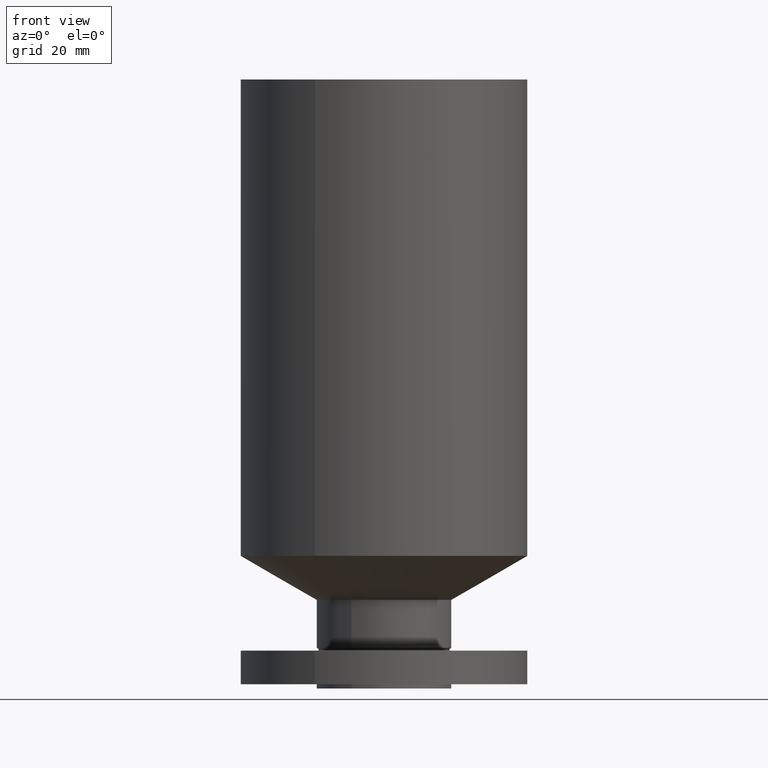
[diagram: clean part render]
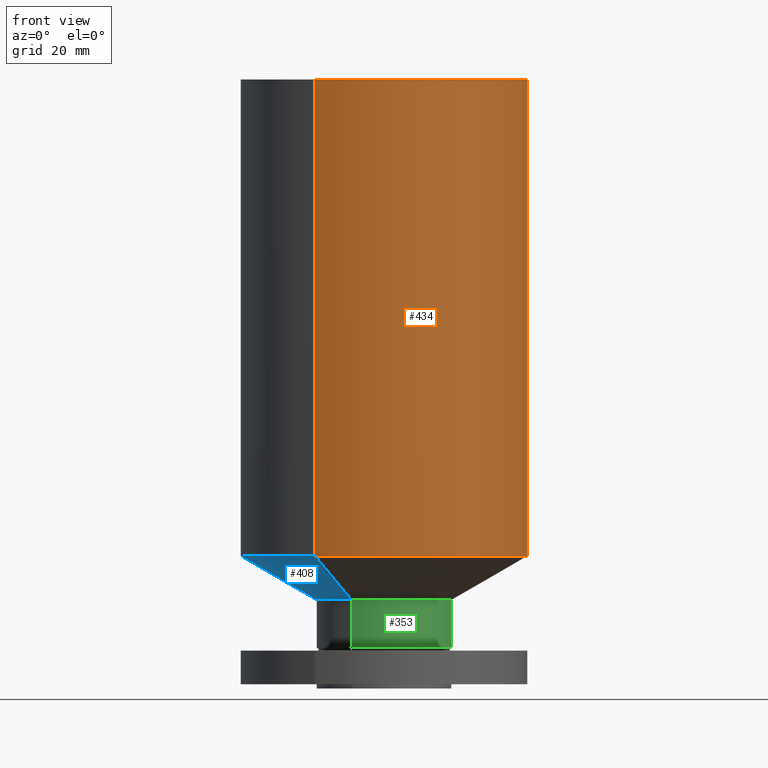
[diagram: same view with three faces highlighted in distinct colors, each labeled with its STEP entity id]
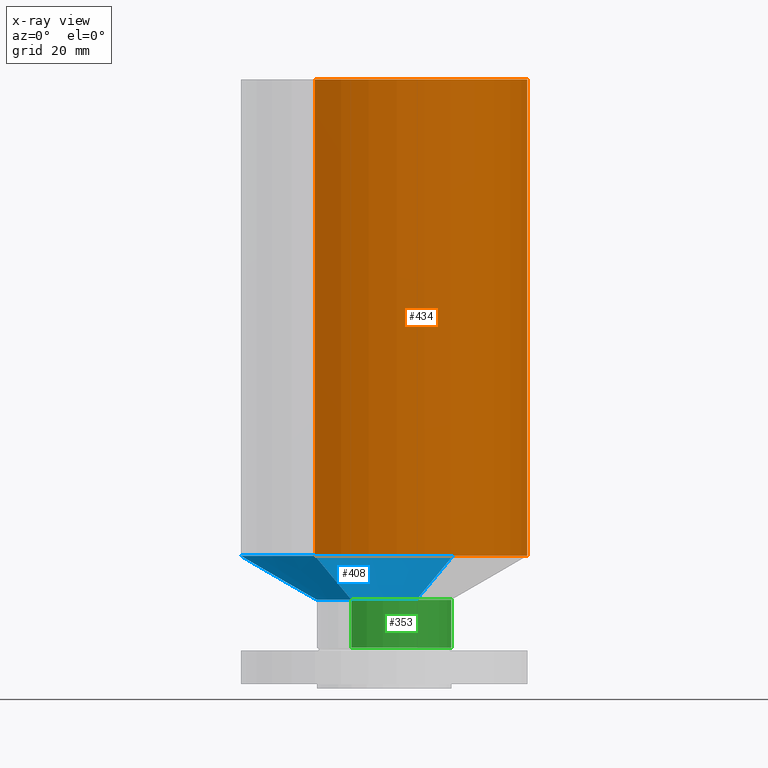
[diagram: x-ray of the same camera — body ghosted, the three highlighted faces saturated]
A machine part, front view with three faces highlighted in distinct colors.
The next image is the same camera in x-ray (body ghosted, the three faces saturated) — at least one of them is partly hidden behind the body in this view.
Their STEP definitions:

[orange] entity #434 — the highlighted cylindrical surface (partial cylindrical patch) has radius 53.975 mm, axis along (0, 0, -1).
#183=AXIS2_PLACEMENT_3D('Cylinder Axis2P3D',#180,#181,#182) ;
#380=AXIS2_PLACEMENT_3D('Circle Axis2P3D',#378,#379,$) ;
#418=AXIS2_PLACEMENT_3D('Circle Axis2P3D',#416,#417,$) ;
#180=CARTESIAN_POINT('Axis2P3D Location',(0.,0.,4.43750000002)) ;
#375=CARTESIAN_POINT('Vertex',(1.01877926954,1.86486294402,1.89701905285)) ;
#378=CARTESIAN_POINT('Axis2P3D Location',(0.,0.,1.89701905285)) ;
#382=CARTESIAN_POINT('Vertex',(-1.01877926954,-1.86486294402,1.89701905285)) ;
#409=CARTESIAN_POINT('Line Origine',(1.01877926954,1.86486294402,5.41725952644)) ;
#413=CARTESIAN_POINT('Vertex',(1.01877926954,1.86486294402,8.93750000004)) ;
#416=CARTESIAN_POINT('Axis2P3D Location',(0.,0.,8.93750000004)) ;
#420=CARTESIAN_POINT('Vertex',(-1.01877926954,-1.86486294402,8.93750000004)) ;
#423=CARTESIAN_POINT('Line Origine',(-1.01877926954,-1.86486294402,5.41725952644)) ;
#181=DIRECTION('Axis2P3D Direction',(0.,0.,-0.0393700787402)) ;
#182=DIRECTION('Axis2P3D XDirection',(-0.0188750212049,-0.0345504945626,0.)) ;
#379=DIRECTION('Axis2P3D Direction',(-0.,0.,0.0393700787402)) ;
#410=DIRECTION('Vector Direction',(0.,0.,-0.0393700787402)) ;
#417=DIRECTION('Axis2P3D Direction',(0.,0.,-0.0393700787402)) ;
#424=DIRECTION('Vector Direction',(0.,0.,-0.0393700787402)) ;
#411=VECTOR('Line Direction',#410,0.0393700787402) ;
#425=VECTOR('Line Direction',#424,0.0393700787402) ;
#429=ORIENTED_EDGE('',*,*,#384,.F.) ;
#430=ORIENTED_EDGE('',*,*,#415,.T.) ;
#431=ORIENTED_EDGE('',*,*,#422,.T.) ;
#432=ORIENTED_EDGE('',*,*,#427,.F.) ;
#434=ADVANCED_FACE('PartBody',(#433),#184,.T.) ;
#381=CIRCLE('generated circle',#380,2.12500000001) ;
#419=CIRCLE('generated circle',#418,2.12500000001) ;
#184=CYLINDRICAL_SURFACE('generated cylinder',#183,2.12500000001) ;
#384=EDGE_CURVE('',#376,#383,#381,.F.) ;
#415=EDGE_CURVE('',#376,#414,#412,.F.) ;
#422=EDGE_CURVE('',#414,#421,#419,.T.) ;
#427=EDGE_CURVE('',#383,#421,#426,.F.) ;
#428=EDGE_LOOP('',(#429,#430,#431,#432)) ;
#433=FACE_OUTER_BOUND('',#428,.T.) ;
#412=LINE('Line',#409,#411) ;
#426=LINE('Line',#423,#425) ;
#376=VERTEX_POINT('',#375) ;
#383=VERTEX_POINT('',#382) ;
#414=VERTEX_POINT('',#413) ;
#421=VERTEX_POINT('',#420) ;

[blue] entity #408 — the highlighted conical surface has half-angle 60 deg.
#356=AXIS2_PLACEMENT_3D('Circle Axis2P3D',#354,#355,$) ;
#369=AXIS2_PLACEMENT_3D('Cone Axis2P3D',#366,#367,#368) ;
#399=AXIS2_PLACEMENT_3D('Circle Axis2P3D',#397,#398,$) ;
#332=CARTESIAN_POINT('Vertex',(0.479425538606,0.877582561894,1.2475)) ;
#339=CARTESIAN_POINT('Vertex',(-0.479425538606,-0.877582561894,1.2475)) ;
#354=CARTESIAN_POINT('Axis2P3D Location',(0.,0.,1.2475)) ;
#366=CARTESIAN_POINT('Axis2P3D Location',(0.,0.,1.2475)) ;
#371=CARTESIAN_POINT('Line Origine',(0.749102404072,1.37122275296,1.57225952643)) ;
#375=CARTESIAN_POINT('Vertex',(1.01877926954,1.86486294402,1.89701905285)) ;
#382=CARTESIAN_POINT('Vertex',(-1.01877926954,-1.86486294402,1.89701905285)) ;
#385=CARTESIAN_POINT('Line Origine',(-0.749102404072,-1.37122275296,1.57225952643)) ;
#397=CARTESIAN_POINT('Axis2P3D Location',(0.,0.,1.89701905285)) ;
#355=DIRECTION('Axis2P3D Direction',(0.,0.,-0.0393700787402)) ;
#367=DIRECTION('Axis2P3D Direction',(-0.,-0.,0.0393700787402)) ;
#368=DIRECTION('Axis2P3D XDirection',(0.0188750212049,0.0345504945626,0.)) ;
#372=DIRECTION('Vector Direction',(0.0163462478604,0.0299216060045,0.0196850393701)) ;
#386=DIRECTION('Vector Direction',(-0.0163462478604,-0.0299216060045,0.0196850393701)) ;
#398=DIRECTION('Axis2P3D Direction',(-0.,0.,0.0393700787402)) ;
#373=VECTOR('Line Direction',#372,0.0393700787402) ;
#387=VECTOR('Line Direction',#386,0.0393700787402) ;
#403=ORIENTED_EDGE('',*,*,#358,.F.) ;
#404=ORIENTED_EDGE('',*,*,#389,.T.) ;
#405=ORIENTED_EDGE('',*,*,#401,.T.) ;
#406=ORIENTED_EDGE('',*,*,#377,.F.) ;
#408=ADVANCED_FACE('PartBody',(#407),#370,.T.) ;
#357=CIRCLE('generated circle',#356,1.) ;
#400=CIRCLE('generated circle',#399,2.12500000001) ;
#370=CONICAL_SURFACE('Cone',#369,1.,1.0471975512) ;
#358=EDGE_CURVE('',#340,#333,#357,.T.) ;
#377=EDGE_CURVE('',#333,#376,#374,.T.) ;
#389=EDGE_CURVE('',#340,#383,#388,.T.) ;
#401=EDGE_CURVE('',#383,#376,#400,.F.) ;
#402=EDGE_LOOP('',(#403,#404,#405,#406)) ;
#407=FACE_OUTER_BOUND('',#402,.T.) ;
#374=LINE('Line',#371,#373) ;
#388=LINE('Line',#385,#387) ;
#333=VERTEX_POINT('',#332) ;
#340=VERTEX_POINT('',#339) ;
#376=VERTEX_POINT('',#375) ;
#383=VERTEX_POINT('',#382) ;

[green] entity #353 — the highlighted cylindrical surface (partial cylindrical patch) has radius 25.4 mm, axis along (0, 0, -1).
#294=AXIS2_PLACEMENT_3D('Circle Axis2P3D',#292,#293,$) ;
#326=AXIS2_PLACEMENT_3D('Cylinder Axis2P3D',#323,#324,#325) ;
#337=AXIS2_PLACEMENT_3D('Circle Axis2P3D',#335,#336,$) ;
#289=CARTESIAN_POINT('Vertex',(0.479425538606,0.877582561894,0.538480762116)) ;
#292=CARTESIAN_POINT('Axis2P3D Location',(0.,0.,0.538480762116)) ;
#296=CARTESIAN_POINT('Vertex',(-0.479425538606,-0.877582561894,0.538480762116)) ;
#323=CARTESIAN_POINT('Axis2P3D Location',(0.,0.,4.43750000002)) ;
#328=CARTESIAN_POINT('Line Origine',(0.479425538606,0.877582561894,-0.0312500000001)) ;
#332=CARTESIAN_POINT('Vertex',(0.479425538606,0.877582561894,1.2475)) ;
#335=CARTESIAN_POINT('Axis2P3D Location',(0.,0.,1.2475)) ;
#339=CARTESIAN_POINT('Vertex',(-0.479425538606,-0.877582561894,1.2475)) ;
#342=CARTESIAN_POINT('Line Origine',(-0.479425538606,-0.877582561894,-0.0312500000001)) ;
#293=DIRECTION('Axis2P3D Direction',(-0.,0.,0.0393700787402)) ;
#324=DIRECTION('Axis2P3D Direction',(0.,0.,-0.0393700787402)) ;
#325=DIRECTION('Axis2P3D XDirection',(0.0188750212049,0.0345504945626,0.)) ;
#329=DIRECTION('Vector Direction',(0.,0.,-0.0393700787402)) ;
#336=DIRECTION('Axis2P3D Direction',(0.,0.,-0.0393700787402)) ;
#343=DIRECTION('Vector Direction',(0.,0.,-0.0393700787402)) ;
#330=VECTOR('Line Direction',#329,0.0393700787402) ;
#344=VECTOR('Line Direction',#343,0.0393700787402) ;
#348=ORIENTED_EDGE('',*,*,#298,.F.) ;
#349=ORIENTED_EDGE('',*,*,#334,.T.) ;
#350=ORIENTED_EDGE('',*,*,#341,.T.) ;
#351=ORIENTED_EDGE('',*,*,#346,.F.) ;
#353=ADVANCED_FACE('PartBody',(#352),#327,.T.) ;
#295=CIRCLE('generated circle',#294,1.) ;
#338=CIRCLE('generated circle',#337,1.) ;
#327=CYLINDRICAL_SURFACE('generated cylinder',#326,1.) ;
#298=EDGE_CURVE('',#290,#297,#295,.F.) ;
#334=EDGE_CURVE('',#290,#333,#331,.F.) ;
#341=EDGE_CURVE('',#333,#340,#338,.T.) ;
#346=EDGE_CURVE('',#297,#340,#345,.F.) ;
#347=EDGE_LOOP('',(#348,#349,#350,#351)) ;
#352=FACE_OUTER_BOUND('',#347,.T.) ;
#331=LINE('Line',#328,#330) ;
#345=LINE('Line',#342,#344) ;
#290=VERTEX_POINT('',#289) ;
#297=VERTEX_POINT('',#296) ;
#333=VERTEX_POINT('',#332) ;
#340=VERTEX_POINT('',#339) ;